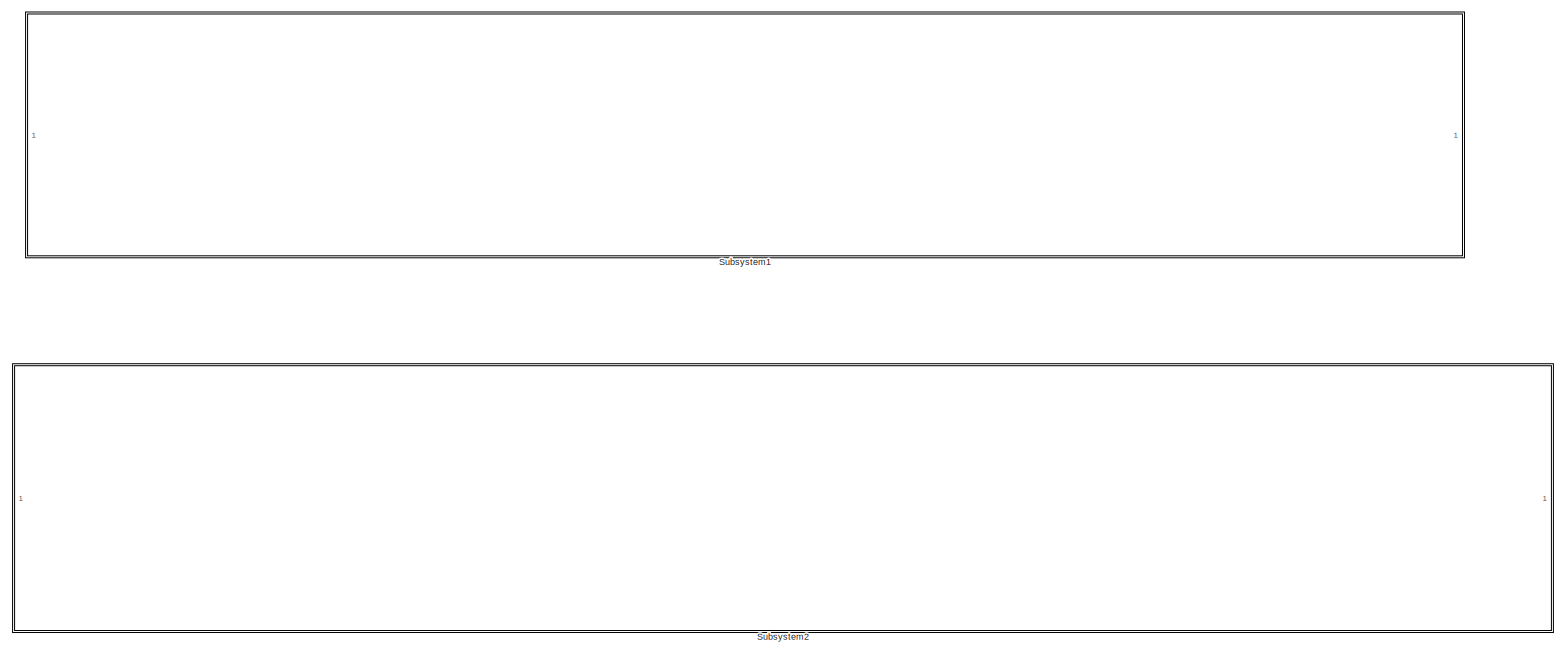
[diagram: root canvas - part 1/1, most of the canvas]
MODEL slx_8e2c88822663
KIND model
CONFIG AbsTol = auto
CONFIG EnableMultiTasking = off
CONFIG FixedStep = auto
CONFIG MaxStep = 0.25
CONFIG MinStep = auto
CONFIG RelTol = 1e-3
CONFIG SampleTimeConstraint = Unconstrained
CONFIG SolverName = VariableStepDiscrete
CONFIG StartTime = 0.0
CONFIG StopTime = inf
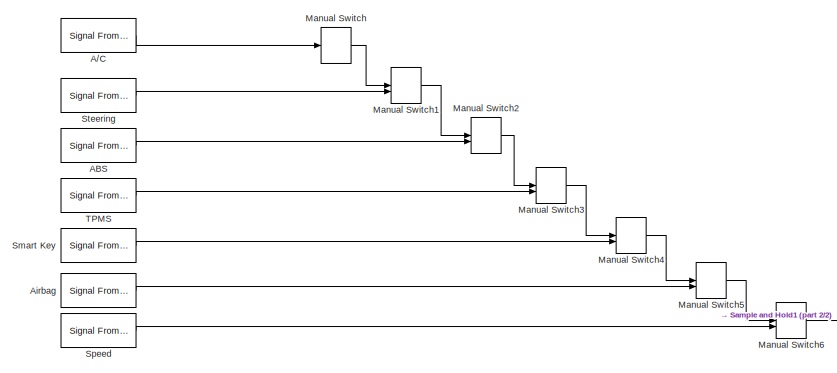
[diagram: Subsystem1 - part 1/2, left side, full height]
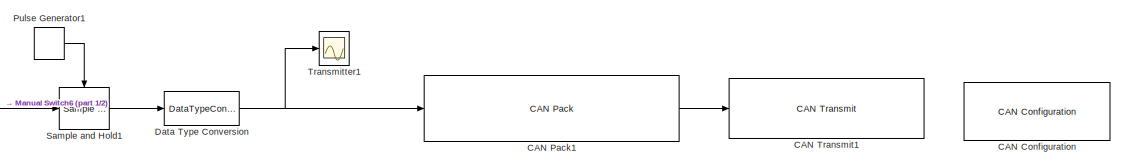
[diagram: Subsystem1 - part 2/2, bottom right region]
BLOCK [SubSystem] Subsystem1
BLOCK [Reference] Subsystem1/A//C  REF=dspsrcs4/Signal From
Workspace
  Priority = 1
  SourceBlock = dspsrcs4/Signal From\nWorkspace
  SourceType = Signal From Workspace
BLOCK [Reference] Subsystem1/ABS  REF=dspsrcs4/Signal From
Workspace
  Priority = 3
  SourceBlock = dspsrcs4/Signal From\nWorkspace
  SourceType = Signal From Workspace
BLOCK [Reference] Subsystem1/Airbag  REF=dspsrcs4/Signal From
Workspace
  Priority = 6
  SourceBlock = dspsrcs4/Signal From\nWorkspace
  SourceType = Signal From Workspace
BLOCK [Reference] Subsystem1/CAN Configuration  REF=canlib/CAN Configuration
  SourceBlock = canlib/CAN Configuration
  SourceType = CAN Configuration
BLOCK [Reference] Subsystem1/CAN Pack1  REF=canmsglib/CAN Pack
  LibrarySourceBlock = canlib/CAN Pack
  SourceBlock = canmsglib/CAN Pack
  SourceType = CAN Pack
BLOCK [Reference] Subsystem1/CAN Transmit1  REF=canlib/CAN Transmit
  SourceBlock = canlib/CAN Transmit
  SourceType = CAN Transmit
BLOCK [DataTypeConversion] Subsystem1/Data Type Conversion
  OutDataTypeStr = uint8
  RndMeth = Floor
  SaturateOnIntegerOverflow = off
BLOCK [ManualSwitch] Subsystem1/Manual Switch
BLOCK [ManualSwitch] Subsystem1/Manual Switch1
BLOCK [ManualSwitch] Subsystem1/Manual Switch2
BLOCK [ManualSwitch] Subsystem1/Manual Switch3
BLOCK [ManualSwitch] Subsystem1/Manual Switch4
BLOCK [ManualSwitch] Subsystem1/Manual Switch5
BLOCK [ManualSwitch] Subsystem1/Manual Switch6
  CurrentSetting = 0
BLOCK [DiscretePulseGenerator] Subsystem1/Pulse Generator1
  Period = 5
  VectorParams1D = off
BLOCK [Reference] Subsystem1/Sample and Hold1  REF=dspsigops/Sample
and Hold
  SourceBlock = dspsigops/Sample\nand Hold
  SourceType = Sample and Hold
BLOCK [Reference] Subsystem1/Smart Key  REF=dspsrcs4/Signal From
Workspace
  Priority = 5
  SourceBlock = dspsrcs4/Signal From\nWorkspace
  SourceType = Signal From Workspace
BLOCK [Reference] Subsystem1/Speed  REF=dspsrcs4/Signal From
Workspace
  Priority = 7
  SourceBlock = dspsrcs4/Signal From\nWorkspace
  SourceType = Signal From Workspace
BLOCK [Reference] Subsystem1/Steering  REF=dspsrcs4/Signal From
Workspace
  Priority = 2
  SourceBlock = dspsrcs4/Signal From\nWorkspace
  SourceType = Signal From Workspace
BLOCK [Reference] Subsystem1/TPMS  REF=dspsrcs4/Signal From
Workspace
  Priority = 4
  SourceBlock = dspsrcs4/Signal From\nWorkspace
  SourceType = Signal From Workspace
BLOCK [Scope] Subsystem1/Transmitter1
  Floating = off
  NumInputPorts = 1
  ScopeSpecificationString = Simulink.scopes.TimeScopeBlockCfg('CurrentConfiguration', extmgr.ConfigurationSet(extmgr.Configuration('Core','General UI',true),extmgr.Configuration('Core','Source UI',true),extmgr.Configuration('Sources','WiredSimulink',true,'DataLoggingVariableName','ScopeData2','DataLogging',true),extmgr.Configuration('Visuals','Time Domain',true,'SerializedDisplays',{struct('MinYLimReal','-0.25','MaxYLimReal'...<+1541ch>
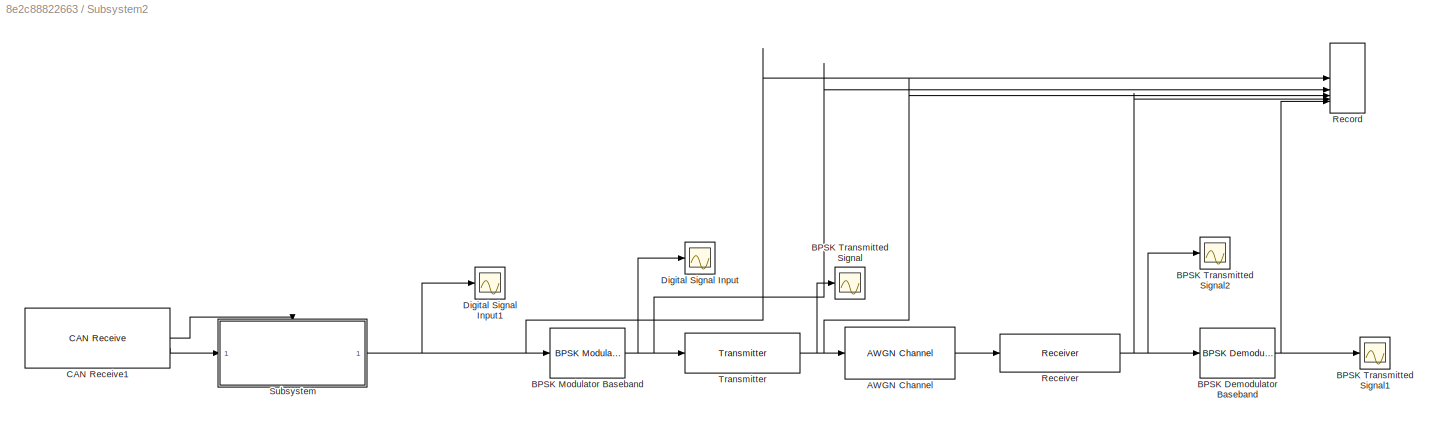
BLOCK [SubSystem] Subsystem2
BLOCK [Reference] Subsystem2/AWGN Channel  REF=commchan3/AWGN
Channel
  SourceBlock = commchan3/AWGN\nChannel
  SourceType = AWGN Channel
BLOCK [Reference] Subsystem2/BPSK Demodulator Baseband  REF=commdigbbndpm3/BPSK
Demodulator
Baseband
  SourceBlock = commdigbbndpm3/BPSK\nDemodulator\nBaseband
  SourceType = BPSK Demodulator Baseband
BLOCK [Reference] Subsystem2/BPSK Modulator Baseband  REF=commdigbbndpm3/BPSK
Modulator
Baseband
  SourceBlock = commdigbbndpm3/BPSK\nModulator\nBaseband
  SourceType = BPSK Modulator Baseband
BLOCK [Scope] Subsystem2/BPSK Transmitted Signal
  Floating = off
  NumInputPorts = 1
  ScopeSpecificationString = Simulink.scopes.TimeScopeBlockCfg('CurrentConfiguration', extmgr.ConfigurationSet(extmgr.Configuration('Core','General UI',true),extmgr.Configuration('Core','Source UI',true),extmgr.Configuration('Sources','WiredSimulink',true),extmgr.Configuration('Visuals','Time Domain',true,'SerializedDisplays',{struct('MinYLimReal','-883.88348','MaxYLimReal','883.88348','YLabelReal','','MinYLimMag',' 0.00000',...<+1872ch>
BLOCK [Scope] Subsystem2/BPSK Transmitted Signal1
  Floating = off
  NumInputPorts = 1
  ScopeSpecificationString = Simulink.scopes.TimeScopeBlockCfg('CurrentConfiguration', extmgr.ConfigurationSet(extmgr.Configuration('Core','General UI',true),extmgr.Configuration('Core','Source UI',true),extmgr.Configuration('Sources','WiredSimulink',true,'DataLoggingVariableName','ScopeData2'),extmgr.Configuration('Visuals','Time Domain',true,'SerializedDisplays',{struct('MinYLimReal','-0.125','MaxYLimReal','1.125','YLabelRe...<+1769ch>
BLOCK [Scope] Subsystem2/BPSK Transmitted Signal2
  Floating = off
  NumInputPorts = 1
  ScopeSpecificationString = Simulink.scopes.TimeScopeBlockCfg('CurrentConfiguration', extmgr.ConfigurationSet(extmgr.Configuration('Core','General UI',true),extmgr.Configuration('Core','Source UI',true),extmgr.Configuration('Sources','WiredSimulink',true,'DataLoggingVariableName','ScopeData3'),extmgr.Configuration('Visuals','Time Domain',true,'SerializedDisplays',{struct('MinYLimReal','-7160.56007','MaxYLimReal','7162.53943'...<+1868ch>
BLOCK [Reference] Subsystem2/CAN Receive1  REF=canlib/CAN Receive
  SourceBlock = canlib/CAN Receive
  SourceType = CAN Receive
BLOCK [Scope] Subsystem2/Digital Signal Input
  Floating = off
  NumInputPorts = 1
  ScopeSpecificationString = Simulink.scopes.TimeScopeBlockCfg('CurrentConfiguration', extmgr.ConfigurationSet(extmgr.Configuration('Core','General UI',true),extmgr.Configuration('Core','Source UI',true),extmgr.Configuration('Sources','WiredSimulink',true,'DataLoggingVariableName','ScopeData1'),extmgr.Configuration('Visuals','Time Domain',true,'SerializedDisplays',{struct('MinYLimReal','-1.25','MaxYLimReal','1.25','YLabelReal...<+2068ch>
BLOCK [Scope] Subsystem2/Digital Signal Input1
  Floating = off
  NumInputPorts = 1
  ScopeSpecificationString = Simulink.scopes.TimeScopeBlockCfg('CurrentConfiguration', extmgr.ConfigurationSet(extmgr.Configuration('Core','General UI',true),extmgr.Configuration('Core','Source UI',true),extmgr.Configuration('Sources','WiredSimulink',true,'DataLoggingVariableName','ScopeData1'),extmgr.Configuration('Visuals','Time Domain',true,'SerializedDisplays',{struct('MinYLimReal','-0.125','MaxYLimReal','1.125','YLabelRe...<+1641ch>
BLOCK [Reference] Subsystem2/Receiver  REF=phasedtxrxlib/Receiver
  SourceBlock = phasedtxrxlib/Receiver
  SourceType = phased.internal.SimulinkReceiver
BLOCK [Record] Subsystem2/Record
  FileSettingsInternal = {"entries":[{"content":{"excelSettings":{"content":{},"type":"Streamout.ExcelSettings"}},"type":"Streamout.FileSettingStorage","uuid":""}],"packageUris":["http:\/\/schema.mathworks.com\/mf0\/streamout_blocks\/R2020a"],"version":"1.0"}
  Layout = [1 1]
  SignalsInternal = {"entries":[{"content":{"signals":[{"content":{"blockPath":[],"dimensions":[8],"domain":"","hasChildren":true,"lineColor":"#0072bd","lineWidth":2,"port":1,"signalID":1,"signalName":"Subsystem"},"type":"RecordBlkView.Signal","uuid":""},{"content":{"blockPath":[],"channel":[1],"dimensions":[8],"domain":"","lineColor":"#fe330a","lineWidth":2,"parentID":1,"port":1,"signalID":2,"signalName":"Subsystem"...<+21458ch>
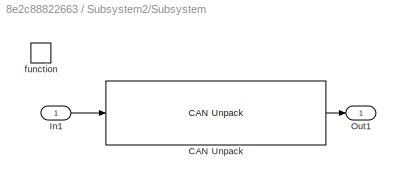
BLOCK [SubSystem] Subsystem2/Subsystem
BLOCK [Reference] Subsystem2/Subsystem/CAN Unpack  REF=canmsglib/CAN Unpack
  LibrarySourceBlock = canlib/CAN Unpack
  SourceBlock = canmsglib/CAN Unpack
  SourceType = CAN Unpack
BLOCK [Inport] Subsystem2/Subsystem/In1
BLOCK [Outport] Subsystem2/Subsystem/Out1
BLOCK [TriggerPort] Subsystem2/Subsystem/function
  StatesWhenEnabling = held
  TriggerType = function-call
  VariantControl = (inherit)
BLOCK [Reference] Subsystem2/Transmitter  REF=phasedtxrxlib/Transmitter
  SourceBlock = phasedtxrxlib/Transmitter
  SourceType = phased.internal.SimulinkTransmitter
LINE Subsystem1/A//C:1 -> Subsystem1/Manual Switch:1
LINE Subsystem1/ABS:1 -> Subsystem1/Manual Switch2:2
LINE Subsystem1/Airbag:1 -> Subsystem1/Manual Switch5:2
LINE Subsystem1/CAN Pack1:1 -> Subsystem1/CAN Transmit1:1
NET Subsystem1/Data Type Conversion:1 -> Subsystem1/CAN Pack1:1, Subsystem1/Transmitter1:1
LINE Subsystem1/Manual Switch1:1 -> Subsystem1/Manual Switch2:1
LINE Subsystem1/Manual Switch2:1 -> Subsystem1/Manual Switch3:1
LINE Subsystem1/Manual Switch3:1 -> Subsystem1/Manual Switch4:1
LINE Subsystem1/Manual Switch4:1 -> Subsystem1/Manual Switch5:1
LINE Subsystem1/Manual Switch5:1 -> Subsystem1/Manual Switch6:1
LINE Subsystem1/Manual Switch6:1 -> Subsystem1/Sample and Hold1:1
LINE Subsystem1/Manual Switch:1 -> Subsystem1/Manual Switch1:1
LINE Subsystem1/Pulse Generator1:1 -> Subsystem1/Sample and Hold1:trigger
LINE Subsystem1/Sample and Hold1:1 -> Subsystem1/Data Type Conversion:1
LINE Subsystem1/Smart Key:1 -> Subsystem1/Manual Switch4:2
LINE Subsystem1/Speed:1 -> Subsystem1/Manual Switch6:2
LINE Subsystem1/Steering:1 -> Subsystem1/Manual Switch1:2
LINE Subsystem1/TPMS:1 -> Subsystem1/Manual Switch3:2
LINE Subsystem2/AWGN Channel:1 -> Subsystem2/Receiver:1
NET Subsystem2/BPSK Demodulator Baseband:1 -> Subsystem2/BPSK Transmitted Signal1:1, Subsystem2/Record:5
NET Subsystem2/BPSK Modulator Baseband:1 -> Subsystem2/Digital Signal Input:1, Subsystem2/Record:2, Subsystem2/Transmitter:1
LINE Subsystem2/CAN Receive1:1 -> Subsystem2/Subsystem:trigger
LINE Subsystem2/CAN Receive1:2 -> Subsystem2/Subsystem:1
NET Subsystem2/Receiver:1 -> Subsystem2/BPSK Demodulator Baseband:1, Subsystem2/BPSK Transmitted Signal2:1, Subsystem2/Record:4
LINE Subsystem2/Subsystem/CAN Unpack:1 -> Subsystem2/Subsystem/Out1:1
LINE Subsystem2/Subsystem/In1:1 -> Subsystem2/Subsystem/CAN Unpack:1
NET Subsystem2/Subsystem:1 -> Subsystem2/BPSK Modulator Baseband:1, Subsystem2/Digital Signal Input1:1, Subsystem2/Record:1
NET Subsystem2/Transmitter:1 -> Subsystem2/AWGN Channel:1, Subsystem2/BPSK Transmitted Signal:1, Subsystem2/Record:3
note: NET lines group one-source signal fan-out (src -> all destinations, sorted); 1:1 wires keep LINE
